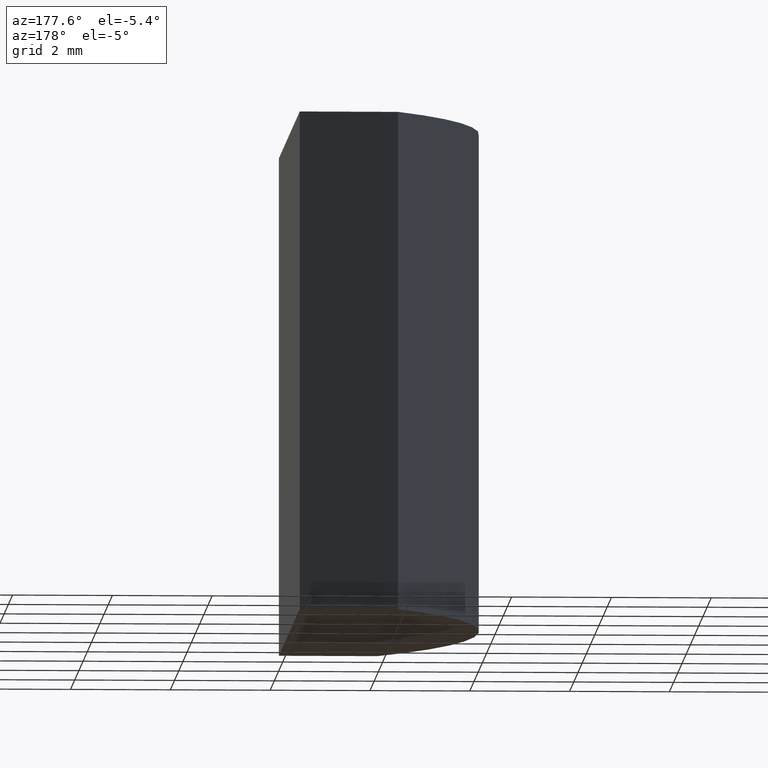
[diagram: clean part render]
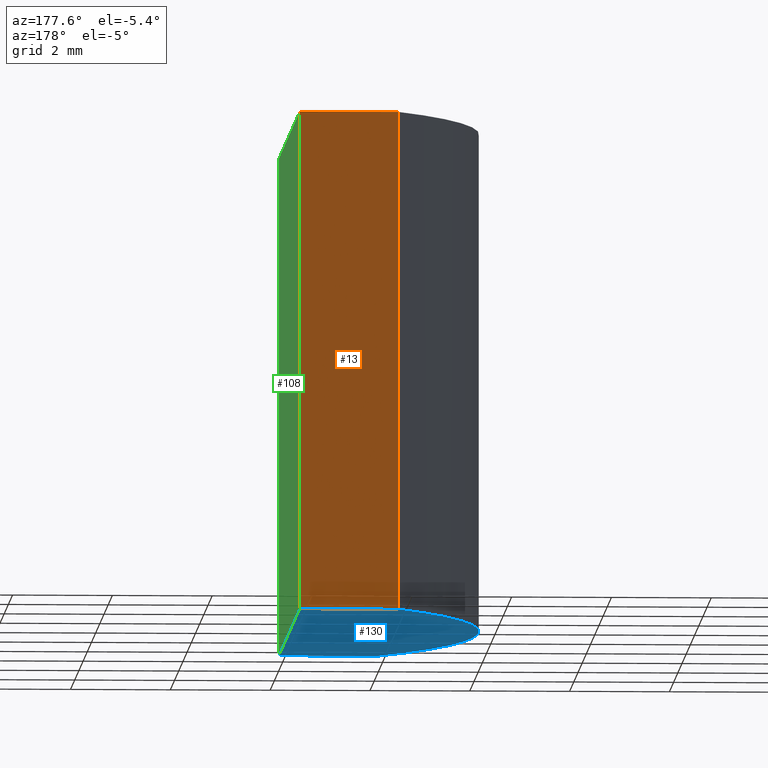
[diagram: same view with three faces highlighted in distinct colors, each labeled with its STEP entity id]
A machine part, auxiliary view with three faces highlighted in distinct colors.
Their STEP definitions:

[orange] entity #13 — the highlighted planar face has unit normal (0, -1, 0).
#5 = VECTOR ( 'NONE', #259, 1000.000000000000000 ) ;
#11 = VECTOR ( 'NONE', #207, 1000.000000000000000 ) ;
#12 = VERTEX_POINT ( 'NONE', #29 ) ;
#13 = ADVANCED_FACE ( 'NONE', ( #252 ), #53, .F. ) ;
#19 = LINE ( 'NONE', #142, #189 ) ;
#20 = CARTESIAN_POINT ( 'NONE',  ( -5.934441844015322154, 5.000000000000000000, 0.000000000000000000 ) ) ;
#25 = EDGE_CURVE ( 'NONE', #12, #182, #224, .T. ) ;
#29 = CARTESIAN_POINT ( 'NONE',  ( -3.964441844015321958, 5.000000000000000000, 0.000000000000000000 ) ) ;
#42 = CARTESIAN_POINT ( 'NONE',  ( -3.964441844015321958, 5.000000000000000000, 10.00000000000000000 ) ) ;
#53 = PLANE ( 'NONE',  #148 ) ;
#67 = CARTESIAN_POINT ( 'NONE',  ( -5.934441844015322154, 5.000000000000000000, 10.00000000000000000 ) ) ;
#72 = DIRECTION ( 'NONE',  ( -0.000000000000000000, -0.000000000000000000, -1.000000000000000000 ) ) ;
#74 = EDGE_CURVE ( 'NONE', #243, #12, #19, .T. ) ;
#92 = EDGE_CURVE ( 'NONE', #243, #179, #226, .T. ) ;
#111 = ORIENTED_EDGE ( 'NONE', *, *, #254, .F. ) ;
#117 = CARTESIAN_POINT ( 'NONE',  ( -5.934441844015322154, 5.000000000000000000, 0.000000000000000000 ) ) ;
#137 = CARTESIAN_POINT ( 'NONE',  ( -5.934441844015322154, 5.000000000000000000, 10.00000000000000000 ) ) ;
#142 = CARTESIAN_POINT ( 'NONE',  ( -3.964441844015321958, 5.000000000000000000, 10.00000000000000000 ) ) ;
#148 = AXIS2_PLACEMENT_3D ( 'NONE', #67, #223, #156 ) ;
#154 = ORIENTED_EDGE ( 'NONE', *, *, #92, .F. ) ;
#156 = DIRECTION ( 'NONE',  ( 0.000000000000000000, -0.000000000000000000, -1.000000000000000000 ) ) ;
#160 = ORIENTED_EDGE ( 'NONE', *, *, #25, .T. ) ;
#169 = CARTESIAN_POINT ( 'NONE',  ( -5.934441844015322154, 5.000000000000000000, 10.00000000000000000 ) ) ;
#179 = VERTEX_POINT ( 'NONE', #227 ) ;
#182 = VERTEX_POINT ( 'NONE', #20 ) ;
#186 = DIRECTION ( 'NONE',  ( -1.000000000000000000, -0.000000000000000000, -0.000000000000000000 ) ) ;
#189 = VECTOR ( 'NONE', #72, 1000.000000000000000 ) ;
#207 = DIRECTION ( 'NONE',  ( -1.000000000000000000, -0.000000000000000000, -0.000000000000000000 ) ) ;
#214 = LINE ( 'NONE', #169, #5 ) ;
#216 = VECTOR ( 'NONE', #186, 1000.000000000000000 ) ;
#223 = DIRECTION ( 'NONE',  ( 0.000000000000000000, -1.000000000000000000, 0.000000000000000000 ) ) ;
#224 = LINE ( 'NONE', #117, #11 ) ;
#226 = LINE ( 'NONE', #137, #216 ) ;
#227 = CARTESIAN_POINT ( 'NONE',  ( -5.934441844015322154, 5.000000000000000000, 10.00000000000000000 ) ) ;
#243 = VERTEX_POINT ( 'NONE', #42 ) ;
#245 = EDGE_LOOP ( 'NONE', ( #160, #111, #154, #269 ) ) ;
#252 = FACE_OUTER_BOUND ( 'NONE', #245, .T. ) ;
#254 = EDGE_CURVE ( 'NONE', #179, #182, #214, .T. ) ;
#259 = DIRECTION ( 'NONE',  ( -0.000000000000000000, -0.000000000000000000, -1.000000000000000000 ) ) ;
#269 = ORIENTED_EDGE ( 'NONE', *, *, #74, .T. ) ;

[blue] entity #130 — the highlighted planar face has unit normal (0, 0, 1).
#4 = CARTESIAN_POINT ( 'NONE',  ( 0.000000000000000000, 0.000000000000000000, 0.000000000000000000 ) ) ;
#6 = DIRECTION ( 'NONE',  ( 0.000000000000000000, 0.000000000000000000, 1.000000000000000000 ) ) ;
#11 = VECTOR ( 'NONE', #207, 1000.000000000000000 ) ;
#12 = VERTEX_POINT ( 'NONE', #29 ) ;
#14 = VERTEX_POINT ( 'NONE', #247 ) ;
#20 = CARTESIAN_POINT ( 'NONE',  ( -5.934441844015322154, 5.000000000000000000, 0.000000000000000000 ) ) ;
#25 = EDGE_CURVE ( 'NONE', #12, #182, #224, .T. ) ;
#28 = ORIENTED_EDGE ( 'NONE', *, *, #248, .F. ) ;
#29 = CARTESIAN_POINT ( 'NONE',  ( -3.964441844015321958, 5.000000000000000000, 0.000000000000000000 ) ) ;
#36 = DIRECTION ( 'NONE',  ( 1.000000000000000000, 0.000000000000000000, 0.000000000000000000 ) ) ;
#47 = EDGE_LOOP ( 'NONE', ( #28, #65, #71, #135, #219 ) ) ;
#52 = CIRCLE ( 'NONE', #222, 7.759999999999998899 ) ;
#57 = DIRECTION ( 'NONE',  ( -0.000000000000000000, 1.000000000000000000, -0.000000000000000000 ) ) ;
#65 = ORIENTED_EDGE ( 'NONE', *, *, #25, .F. ) ;
#71 = ORIENTED_EDGE ( 'NONE', *, *, #191, .F. ) ;
#76 = PLANE ( 'NONE',  #260 ) ;
#79 = CARTESIAN_POINT ( 'NONE',  ( 0.000000000000000000, 0.000000000000000000, 0.000000000000000000 ) ) ;
#104 = LINE ( 'NONE', #123, #195 ) ;
#117 = CARTESIAN_POINT ( 'NONE',  ( -5.934441844015322154, 5.000000000000000000, 0.000000000000000000 ) ) ;
#120 = CARTESIAN_POINT ( 'NONE',  ( -7.759999999999998899, 0.000000000000000000, 0.000000000000000000 ) ) ;
#123 = CARTESIAN_POINT ( 'NONE',  ( -5.934441844015322154, -5.000000000000000000, 0.000000000000000000 ) ) ;
#126 = CIRCLE ( 'NONE', #251, 7.759999999999998899 ) ;
#130 = ADVANCED_FACE ( 'NONE', ( #255 ), #76, .F. ) ;
#135 = ORIENTED_EDGE ( 'NONE', *, *, #266, .F. ) ;
#144 = LINE ( 'NONE', #262, #176 ) ;
#146 = DIRECTION ( 'NONE',  ( 1.000000000000000000, 0.000000000000000000, 0.000000000000000000 ) ) ;
#166 = DIRECTION ( 'NONE',  ( 0.000000000000000000, 0.000000000000000000, 1.000000000000000000 ) ) ;
#172 = CARTESIAN_POINT ( 'NONE',  ( -3.964441844015321958, -5.000000000000000000, 0.000000000000000000 ) ) ;
#176 = VECTOR ( 'NONE', #57, 1000.000000000000000 ) ;
#182 = VERTEX_POINT ( 'NONE', #20 ) ;
#188 = CARTESIAN_POINT ( 'NONE',  ( 0.000000000000000000, 0.000000000000000000, 0.000000000000000000 ) ) ;
#191 = EDGE_CURVE ( 'NONE', #221, #12, #144, .T. ) ;
#195 = VECTOR ( 'NONE', #210, 1000.000000000000000 ) ;
#203 = VERTEX_POINT ( 'NONE', #120 ) ;
#207 = DIRECTION ( 'NONE',  ( -1.000000000000000000, -0.000000000000000000, -0.000000000000000000 ) ) ;
#210 = DIRECTION ( 'NONE',  ( 1.000000000000000000, 0.000000000000000000, 0.000000000000000000 ) ) ;
#213 = DIRECTION ( 'NONE',  ( 0.000000000000000000, 0.000000000000000000, 1.000000000000000000 ) ) ;
#219 = ORIENTED_EDGE ( 'NONE', *, *, #239, .F. ) ;
#221 = VERTEX_POINT ( 'NONE', #172 ) ;
#222 = AXIS2_PLACEMENT_3D ( 'NONE', #79, #213, #36 ) ;
#224 = LINE ( 'NONE', #117, #11 ) ;
#239 = EDGE_CURVE ( 'NONE', #203, #14, #52, .T. ) ;
#247 = CARTESIAN_POINT ( 'NONE',  ( -5.934441844015322154, -5.000000000000000000, 0.000000000000000000 ) ) ;
#248 = EDGE_CURVE ( 'NONE', #182, #203, #126, .T. ) ;
#251 = AXIS2_PLACEMENT_3D ( 'NONE', #188, #6, #146 ) ;
#255 = FACE_OUTER_BOUND ( 'NONE', #47, .T. ) ;
#257 = DIRECTION ( 'NONE',  ( 1.000000000000000000, 0.000000000000000000, -0.000000000000000000 ) ) ;
#260 = AXIS2_PLACEMENT_3D ( 'NONE', #4, #166, #257 ) ;
#262 = CARTESIAN_POINT ( 'NONE',  ( -3.964441844015321958, 5.000000000000000000, 0.000000000000000000 ) ) ;
#266 = EDGE_CURVE ( 'NONE', #14, #221, #104, .T. ) ;

[green] entity #108 — the highlighted planar face has unit normal (-1, 0, 0).
#1 = FACE_OUTER_BOUND ( 'NONE', #199, .T. ) ;
#2 = CARTESIAN_POINT ( 'NONE',  ( -3.964441844015321958, -5.000000000000000000, 10.00000000000000000 ) ) ;
#12 = VERTEX_POINT ( 'NONE', #29 ) ;
#17 = DIRECTION ( 'NONE',  ( 0.000000000000000000, 0.000000000000000000, 1.000000000000000000 ) ) ;
#19 = LINE ( 'NONE', #142, #189 ) ;
#29 = CARTESIAN_POINT ( 'NONE',  ( -3.964441844015321958, 5.000000000000000000, 0.000000000000000000 ) ) ;
#33 = EDGE_CURVE ( 'NONE', #249, #243, #187, .T. ) ;
#37 = CARTESIAN_POINT ( 'NONE',  ( -3.964441844015321958, 5.000000000000000000, 10.00000000000000000 ) ) ;
#42 = CARTESIAN_POINT ( 'NONE',  ( -3.964441844015321958, 5.000000000000000000, 10.00000000000000000 ) ) ;
#57 = DIRECTION ( 'NONE',  ( -0.000000000000000000, 1.000000000000000000, -0.000000000000000000 ) ) ;
#63 = AXIS2_PLACEMENT_3D ( 'NONE', #37, #190, #17 ) ;
#69 = ORIENTED_EDGE ( 'NONE', *, *, #74, .F. ) ;
#72 = DIRECTION ( 'NONE',  ( -0.000000000000000000, -0.000000000000000000, -1.000000000000000000 ) ) ;
#73 = CARTESIAN_POINT ( 'NONE',  ( -3.964441844015321958, 5.000000000000000000, 10.00000000000000000 ) ) ;
#74 = EDGE_CURVE ( 'NONE', #243, #12, #19, .T. ) ;
#78 = CARTESIAN_POINT ( 'NONE',  ( -3.964441844015321958, -5.000000000000000000, 10.00000000000000000 ) ) ;
#95 = ORIENTED_EDGE ( 'NONE', *, *, #191, .T. ) ;
#108 = ADVANCED_FACE ( 'NONE', ( #1 ), #253, .F. ) ;
#119 = DIRECTION ( 'NONE',  ( -0.000000000000000000, 1.000000000000000000, -0.000000000000000000 ) ) ;
#129 = EDGE_CURVE ( 'NONE', #249, #221, #209, .T. ) ;
#142 = CARTESIAN_POINT ( 'NONE',  ( -3.964441844015321958, 5.000000000000000000, 10.00000000000000000 ) ) ;
#144 = LINE ( 'NONE', #262, #176 ) ;
#172 = CARTESIAN_POINT ( 'NONE',  ( -3.964441844015321958, -5.000000000000000000, 0.000000000000000000 ) ) ;
#176 = VECTOR ( 'NONE', #57, 1000.000000000000000 ) ;
#187 = LINE ( 'NONE', #73, #225 ) ;
#189 = VECTOR ( 'NONE', #72, 1000.000000000000000 ) ;
#190 = DIRECTION ( 'NONE',  ( -1.000000000000000000, 0.000000000000000000, 0.000000000000000000 ) ) ;
#191 = EDGE_CURVE ( 'NONE', #221, #12, #144, .T. ) ;
#199 = EDGE_LOOP ( 'NONE', ( #95, #69, #274, #205 ) ) ;
#205 = ORIENTED_EDGE ( 'NONE', *, *, #129, .T. ) ;
#209 = LINE ( 'NONE', #2, #246 ) ;
#221 = VERTEX_POINT ( 'NONE', #172 ) ;
#225 = VECTOR ( 'NONE', #119, 1000.000000000000000 ) ;
#229 = DIRECTION ( 'NONE',  ( -0.000000000000000000, -0.000000000000000000, -1.000000000000000000 ) ) ;
#243 = VERTEX_POINT ( 'NONE', #42 ) ;
#246 = VECTOR ( 'NONE', #229, 1000.000000000000000 ) ;
#249 = VERTEX_POINT ( 'NONE', #78 ) ;
#253 = PLANE ( 'NONE',  #63 ) ;
#262 = CARTESIAN_POINT ( 'NONE',  ( -3.964441844015321958, 5.000000000000000000, 0.000000000000000000 ) ) ;
#274 = ORIENTED_EDGE ( 'NONE', *, *, #33, .F. ) ;